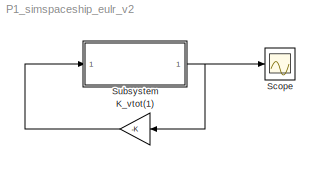
MODEL P1_simspaceship_eulr_v2
KIND model
BLOCK [Gain] K_vtot(1)
  Gain = -K
  Multiplication = Matrix(K*u)
  OutDataTypeStr = Inherit: Inherit via internal rule
  ParamDataTypeStr = Inherit: Inherit via internal rule
  SID = 4050
  SaturateOnIntegerOverflow = off
BLOCK [Scope] Scope
  DataFormat = StructureWithTime
  Floating = off
  NumInputPorts = 1
  Ports = [1]
  SID = 4106
  SampleTime = 0
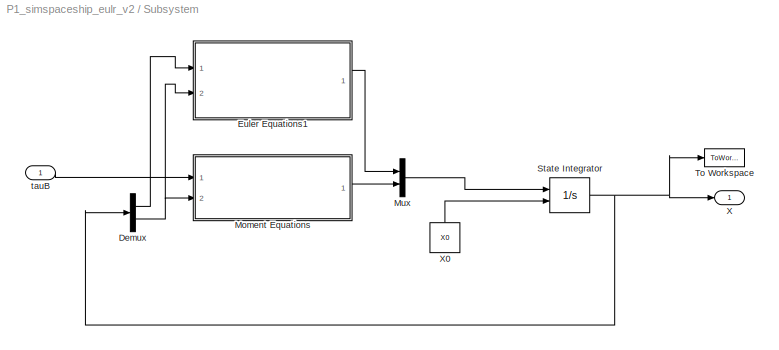
BLOCK [SubSystem] Subsystem
  FunctionWithSeparateData = off
  MaskHideContents = off
  MinAlgLoopOccurrences = off
  Opaque = off
  Ports = [1, 1]
  PropExecContextOutsideSubsystem = off
  RTWSystemCode = Auto
  RequestExecContextInheritance = off
  SID = 4062
BLOCK [Demux] Subsystem/Demux
  DisplayOption = bar
  Outputs = 2
  Ports = [1, 2]
  SID = 4066
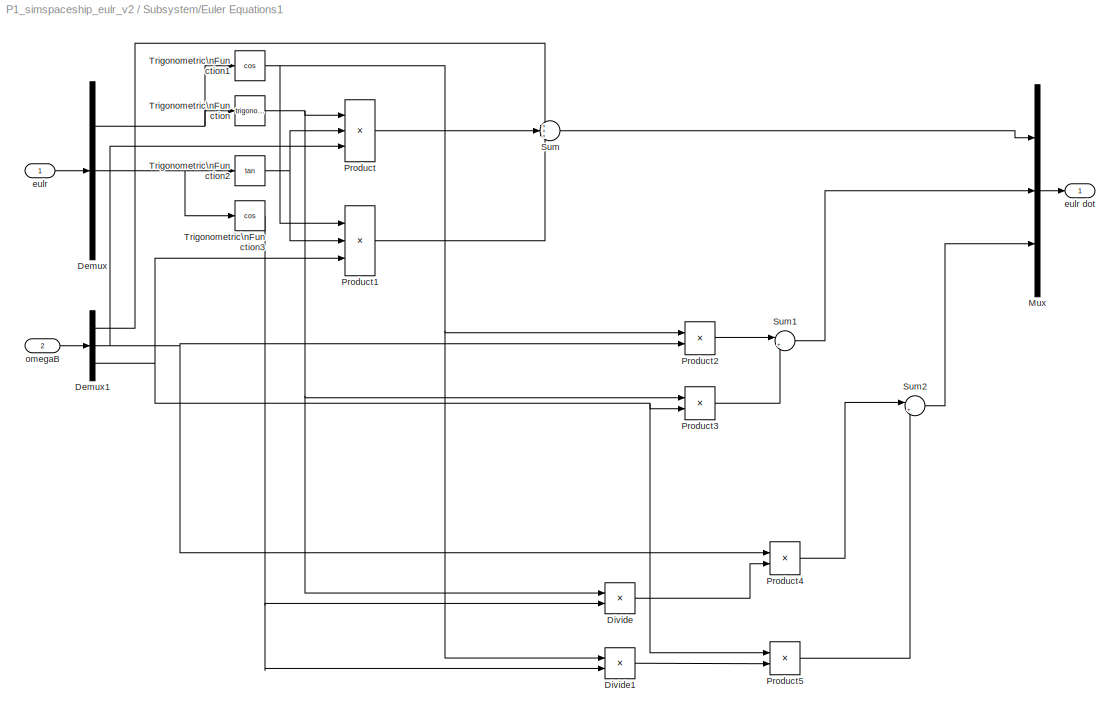
BLOCK [SubSystem] Subsystem/Euler  Equations1
  FunctionWithSeparateData = off
  MaskHideContents = off
  MinAlgLoopOccurrences = off
  Opaque = off
  Ports = [2, 1]
  PropExecContextOutsideSubsystem = off
  RTWSystemCode = Auto
  RequestExecContextInheritance = off
  SID = 4107
BLOCK [Demux] Subsystem/Euler  Equations1/Demux
  DisplayOption = bar
  Outputs = 3
  Ports = [1, 3]
  SID = 4110
BLOCK [Demux] Subsystem/Euler  Equations1/Demux1
  DisplayOption = bar
  Outputs = 3
  Ports = [1, 3]
  SID = 4111
BLOCK [Product] Subsystem/Euler  Equations1/Divide
  InputSameDT = off
  Inputs = */
  OutDataTypeStr = Inherit: Inherit via internal rule
  Ports = [2, 1]
  RndMeth = Floor
  SID = 4112
  SaturateOnIntegerOverflow = off
BLOCK [Product] Subsystem/Euler  Equations1/Divide1
  InputSameDT = off
  Inputs = */
  OutDataTypeStr = Inherit: Inherit via internal rule
  Ports = [2, 1]
  RndMeth = Floor
  SID = 4113
  SaturateOnIntegerOverflow = off
BLOCK [Mux] Subsystem/Euler  Equations1/Mux
  DisplayOption = bar
  Inputs = 3
  Ports = [3, 1]
  SID = 4114
BLOCK [Product] Subsystem/Euler  Equations1/Product
  InputSameDT = off
  Inputs = 3
  OutDataTypeStr = Inherit: Inherit via internal rule
  Ports = [3, 1]
  SID = 4115
  SaturateOnIntegerOverflow = off
BLOCK [Product] Subsystem/Euler  Equations1/Product1
  InputSameDT = off
  Inputs = 3
  OutDataTypeStr = Inherit: Inherit via internal rule
  Ports = [3, 1]
  SID = 4116
  SaturateOnIntegerOverflow = off
BLOCK [Product] Subsystem/Euler  Equations1/Product2
  InputSameDT = off
  OutDataTypeStr = Inherit: Inherit via internal rule
  Ports = [2, 1]
  SID = 4117
  SaturateOnIntegerOverflow = off
BLOCK [Product] Subsystem/Euler  Equations1/Product3
  InputSameDT = off
  OutDataTypeStr = Inherit: Inherit via internal rule
  Ports = [2, 1]
  SID = 4118
  SaturateOnIntegerOverflow = off
BLOCK [Product] Subsystem/Euler  Equations1/Product4
  InputSameDT = off
  OutDataTypeStr = Inherit: Inherit via internal rule
  Ports = [2, 1]
  SID = 4119
  SaturateOnIntegerOverflow = off
BLOCK [Product] Subsystem/Euler  Equations1/Product5
  InputSameDT = off
  OutDataTypeStr = Inherit: Inherit via internal rule
  Ports = [2, 1]
  SID = 4120
  SaturateOnIntegerOverflow = off
BLOCK [Sum] Subsystem/Euler  Equations1/Sum
  IconShape = round
  InputSameDT = off
  Inputs = +++
  OutDataTypeStr = Inherit: Inherit via internal rule
  Ports = [3, 1]
  SID = 4121
  SaturateOnIntegerOverflow = off
BLOCK [Sum] Subsystem/Euler  Equations1/Sum1
  IconShape = round
  InputSameDT = off
  Inputs = |+-
  OutDataTypeStr = Inherit: Inherit via internal rule
  Ports = [2, 1]
  SID = 4122
  SaturateOnIntegerOverflow = off
BLOCK [Sum] Subsystem/Euler  Equations1/Sum2
  IconShape = round
  InputSameDT = off
  Inputs = |++
  OutDataTypeStr = Inherit: Inherit via internal rule
  Ports = [2, 1]
  SID = 4123
  SaturateOnIntegerOverflow = off
BLOCK [Trigonometry] Subsystem/Euler  Equations1/Trigonometric\nFunction
  Ports = [1, 1]
  SID = 4124
BLOCK [Trigonometry] Subsystem/Euler  Equations1/Trigonometric\nFunction1
  Operator = cos
  Ports = [1, 1]
  SID = 4125
BLOCK [Trigonometry] Subsystem/Euler  Equations1/Trigonometric\nFunction2
  Operator = tan
  Ports = [1, 1]
  SID = 4126
BLOCK [Trigonometry] Subsystem/Euler  Equations1/Trigonometric\nFunction3
  Operator = cos
  Ports = [1, 1]
  SID = 4127
BLOCK [Inport] Subsystem/Euler  Equations1/eulr
  IconDisplay = Port number
  SID = 4108
BLOCK [Outport] Subsystem/Euler  Equations1/eulr dot
  IconDisplay = Port number
  SID = 4128
BLOCK [Inport] Subsystem/Euler  Equations1/omegaB
  IconDisplay = Port number
  Port = 2
  SID = 4109
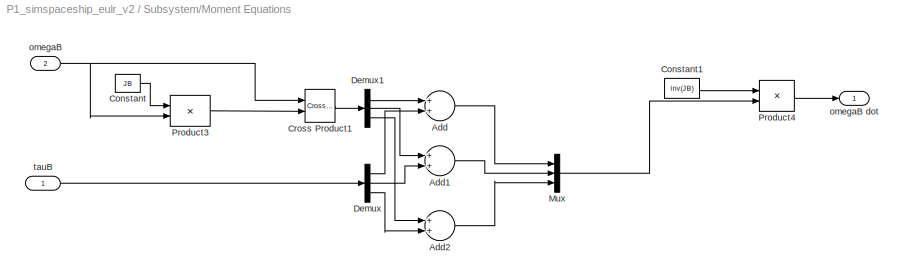
BLOCK [SubSystem] Subsystem/Moment Equations
  FunctionWithSeparateData = off
  MaskHideContents = off
  MinAlgLoopOccurrences = off
  Opaque = off
  Ports = [2, 1]
  PropExecContextOutsideSubsystem = off
  RTWSystemCode = Auto
  RequestExecContextInheritance = off
  SID = 4088
BLOCK [Sum] Subsystem/Moment Equations/Add
  InputSameDT = off
  OutDataTypeStr = Inherit: Inherit via internal rule
  Ports = [2, 1]
  SID = 4091
  SaturateOnIntegerOverflow = off
BLOCK [Sum] Subsystem/Moment Equations/Add1
  InputSameDT = off
  OutDataTypeStr = Inherit: Inherit via internal rule
  Ports = [2, 1]
  SID = 4092
  SaturateOnIntegerOverflow = off
BLOCK [Sum] Subsystem/Moment Equations/Add2
  InputSameDT = off
  OutDataTypeStr = Inherit: Inherit via internal rule
  Ports = [2, 1]
  SID = 4093
  SaturateOnIntegerOverflow = off
BLOCK [Constant] Subsystem/Moment Equations/Constant
  SID = 4094
  Value = JB
BLOCK [Constant] Subsystem/Moment Equations/Constant1
  SID = 4095
  Value = inv(JB)
BLOCK [Reference] Subsystem/Moment Equations/Cross Product1  REF=vrlib/Utilities/Cross Product
  Ports = [2, 1]
  SID = 4096
  SourceBlock = vrlib/Utilities/Cross Product
  SourceType = Cross Product
BLOCK [Demux] Subsystem/Moment Equations/Demux
  DisplayOption = bar
  Outputs = 3
  Ports = [1, 3]
  SID = 4097
BLOCK [Demux] Subsystem/Moment Equations/Demux1
  DisplayOption = bar
  Outputs = 3
  Ports = [1, 3]
  SID = 4098
BLOCK [Mux] Subsystem/Moment Equations/Mux
  DisplayOption = bar
  Inputs = 3
  Ports = [3, 1]
  SID = 4099
BLOCK [Product] Subsystem/Moment Equations/Product3
  InputSameDT = off
  Multiplication = Matrix(*)
  OutDataTypeStr = Inherit: Inherit via internal rule
  Ports = [2, 1]
  SID = 4100
  SaturateOnIntegerOverflow = off
BLOCK [Product] Subsystem/Moment Equations/Product4
  InputSameDT = off
  Multiplication = Matrix(*)
  OutDataTypeStr = Inherit: Inherit via internal rule
  Ports = [2, 1]
  SID = 4101
  SaturateOnIntegerOverflow = off
BLOCK [Inport] Subsystem/Moment Equations/omegaB
  IconDisplay = Port number
  Port = 2
  SID = 4090
BLOCK [Outport] Subsystem/Moment Equations/omegaB dot
  IconDisplay = Port number
  SID = 4102
BLOCK [Inport] Subsystem/Moment Equations/tauB
  IconDisplay = Port number
  OutDataTypeStr = double
  SID = 4089
BLOCK [Mux] Subsystem/Mux
  DisplayOption = bar
  Inputs = 2
  Ports = [2, 1]
  SID = 4103
BLOCK [Integrator] Subsystem/State Integrator
  InitialConditionSource = external
  Ports = [2, 1]
  SID = 4104
BLOCK [ToWorkspace] Subsystem/To Workspace
  MaxDataPoints = inf
  Ports = [1]
  SID = 4045
  SampleTime = -1
  SaveFormat = Structure
  VariableName = X_out
BLOCK [Outport] Subsystem/X
  IconDisplay = Port number
  SID = 4064
BLOCK [Constant] Subsystem/X0
  SID = 4105
  Value = X0
BLOCK [Inport] Subsystem/tauB
  IconDisplay = Port number
  SID = 4063
LINE K_vtot(1):1 -> Subsystem:1
LINE Subsystem/Demux:1 -> Subsystem/Euler  Equations1:1
NET Subsystem/Demux:2 -> Subsystem/Euler  Equations1:2, Subsystem/Moment Equations:2
LINE Subsystem/Euler  Equations1/Demux1:1 -> Subsystem/Euler  Equations1/Sum:1
NET Subsystem/Euler  Equations1/Demux1:2 -> Subsystem/Euler  Equations1/Product2:2, Subsystem/Euler  Equations1/Product4:1, Subsystem/Euler  Equations1/Product:3
NET Subsystem/Euler  Equations1/Demux1:3 -> Subsystem/Euler  Equations1/Product1:3, Subsystem/Euler  Equations1/Product3:2, Subsystem/Euler  Equations1/Product5:1
NET Subsystem/Euler  Equations1/Demux:1 -> Subsystem/Euler  Equations1/Trigonometric\nFunction1:1, Subsystem/Euler  Equations1/Trigonometric\nFunction:1
NET Subsystem/Euler  Equations1/Demux:2 -> Subsystem/Euler  Equations1/Trigonometric\nFunction2:1, Subsystem/Euler  Equations1/Trigonometric\nFunction3:1
LINE Subsystem/Euler  Equations1/Divide1:1 -> Subsystem/Euler  Equations1/Product5:2
LINE Subsystem/Euler  Equations1/Divide:1 -> Subsystem/Euler  Equations1/Product4:2
LINE Subsystem/Euler  Equations1/Mux:1 -> Subsystem/Euler  Equations1/eulr dot:1
LINE Subsystem/Euler  Equations1/Product1:1 -> Subsystem/Euler  Equations1/Sum:3
LINE Subsystem/Euler  Equations1/Product2:1 -> Subsystem/Euler  Equations1/Sum1:1
LINE Subsystem/Euler  Equations1/Product3:1 -> Subsystem/Euler  Equations1/Sum1:2
LINE Subsystem/Euler  Equations1/Product4:1 -> Subsystem/Euler  Equations1/Sum2:1
LINE Subsystem/Euler  Equations1/Product5:1 -> Subsystem/Euler  Equations1/Sum2:2
LINE Subsystem/Euler  Equations1/Product:1 -> Subsystem/Euler  Equations1/Sum:2
LINE Subsystem/Euler  Equations1/Sum1:1 -> Subsystem/Euler  Equations1/Mux:2
LINE Subsystem/Euler  Equations1/Sum2:1 -> Subsystem/Euler  Equations1/Mux:3
LINE Subsystem/Euler  Equations1/Sum:1 -> Subsystem/Euler  Equations1/Mux:1
NET Subsystem/Euler  Equations1/Trigonometric\nFunction1:1 -> Subsystem/Euler  Equations1/Divide1:1, Subsystem/Euler  Equations1/Product1:1, Subsystem/Euler  Equations1/Product2:1
NET Subsystem/Euler  Equations1/Trigonometric\nFunction2:1 -> Subsystem/Euler  Equations1/Product1:2, Subsystem/Euler  Equations1/Product:2
NET Subsystem/Euler  Equations1/Trigonometric\nFunction3:1 -> Subsystem/Euler  Equations1/Divide1:2, Subsystem/Euler  Equations1/Divide:2
NET Subsystem/Euler  Equations1/Trigonometric\nFunction:1 -> Subsystem/Euler  Equations1/Divide:1, Subsystem/Euler  Equations1/Product3:1, Subsystem/Euler  Equations1/Product:1
LINE Subsystem/Euler  Equations1/eulr:1 -> Subsystem/Euler  Equations1/Demux:1
LINE Subsystem/Euler  Equations1/omegaB:1 -> Subsystem/Euler  Equations1/Demux1:1
LINE Subsystem/Euler  Equations1:1 -> Subsystem/Mux:1
LINE Subsystem/Moment Equations/Add1:1 -> Subsystem/Moment Equations/Mux:2
LINE Subsystem/Moment Equations/Add2:1 -> Subsystem/Moment Equations/Mux:3
LINE Subsystem/Moment Equations/Add:1 -> Subsystem/Moment Equations/Mux:1
LINE Subsystem/Moment Equations/Constant1:1 -> Subsystem/Moment Equations/Product4:1
LINE Subsystem/Moment Equations/Constant:1 -> Subsystem/Moment Equations/Product3:1
LINE Subsystem/Moment Equations/Cross Product1:1 -> Subsystem/Moment Equations/Demux1:1
LINE Subsystem/Moment Equations/Demux1:1 -> Subsystem/Moment Equations/Add:1
LINE Subsystem/Moment Equations/Demux1:2 -> Subsystem/Moment Equations/Add1:1
LINE Subsystem/Moment Equations/Demux1:3 -> Subsystem/Moment Equations/Add2:1
LINE Subsystem/Moment Equations/Demux:1 -> Subsystem/Moment Equations/Add:2
LINE Subsystem/Moment Equations/Demux:2 -> Subsystem/Moment Equations/Add1:2
LINE Subsystem/Moment Equations/Demux:3 -> Subsystem/Moment Equations/Add2:2
LINE Subsystem/Moment Equations/Mux:1 -> Subsystem/Moment Equations/Product4:2
LINE Subsystem/Moment Equations/Product3:1 -> Subsystem/Moment Equations/Cross Product1:2
LINE Subsystem/Moment Equations/Product4:1 -> Subsystem/Moment Equations/omegaB dot:1
NET Subsystem/Moment Equations/omegaB:1 -> Subsystem/Moment Equations/Cross Product1:1, Subsystem/Moment Equations/Product3:2
LINE Subsystem/Moment Equations/tauB:1 -> Subsystem/Moment Equations/Demux:1
LINE Subsystem/Moment Equations:1 -> Subsystem/Mux:2
LINE Subsystem/Mux:1 -> Subsystem/State Integrator:1
NET Subsystem/State Integrator:1 -> Subsystem/Demux:1, Subsystem/To Workspace:1, Subsystem/X:1
LINE Subsystem/X0:1 -> Subsystem/State Integrator:2
LINE Subsystem/tauB:1 -> Subsystem/Moment Equations:1
NET Subsystem:1 -> K_vtot(1):1, Scope:1
note: NET lines group one-source signal fan-out (src -> all destinations, sorted); 1:1 wires keep LINE
